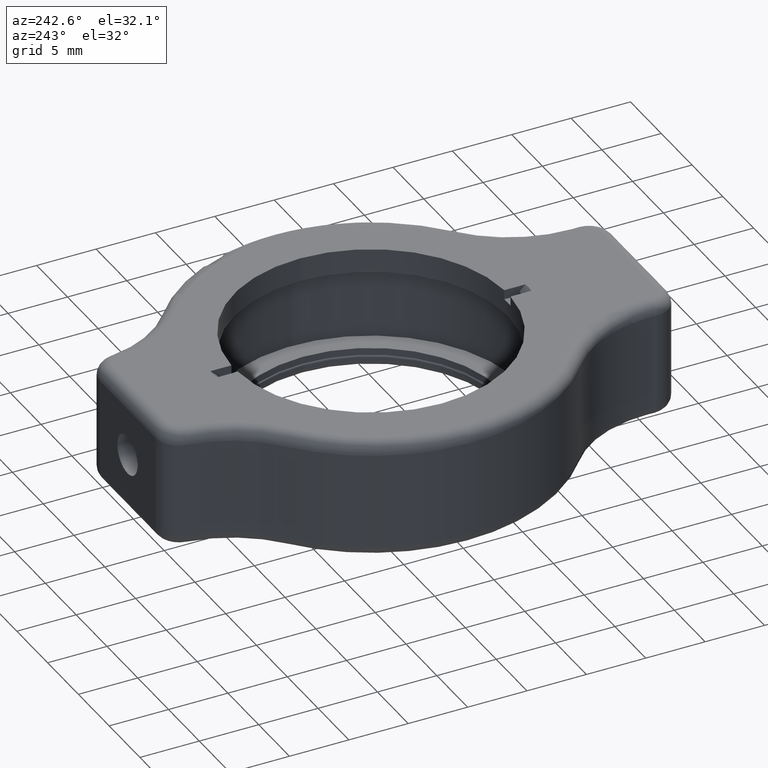
[diagram: clean part render]
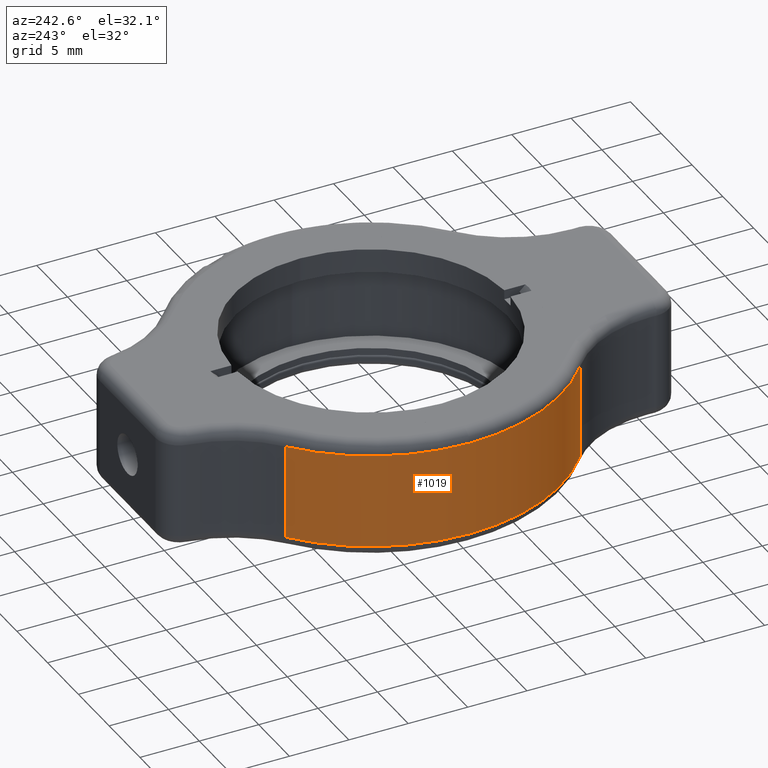
[diagram: same view with one face highlighted and labeled with its STEP entity id]
A machine part, auxiliary view. The second image highlights one B-rep face of the part: STEP entity #1019.
In plain terms, the highlighted cylindrical surface (partial cylindrical patch) has radius 16 mm, axis along (0, -0, 1).
Its self-contained STEP definition (entity closure, byte-faithful):
#57 = EDGE_CURVE ( 'NONE', #2434, #1635, #1631, .T. ) ;
#78 = CARTESIAN_POINT ( 'NONE',  ( -16.00000000000000000, -4.440892098500571400E-016, -8.999999999999982200 ) ) ;
#149 = DIRECTION ( 'NONE',  ( -1.000000000000000000, -2.775557561562889500E-017, 0.0000000000000000000 ) ) ;
#190 = EDGE_CURVE ( 'NONE', #2434, #543, #1063, .T. ) ;
#209 = FACE_OUTER_BOUND ( 'NONE', #823, .T. ) ;
#222 = EDGE_CURVE ( 'NONE', #1746, #1880, #1934, .T. ) ;
#275 = CARTESIAN_POINT ( 'NONE',  ( -10.14624297683040400, -12.37148954067859200, -0.9999999999999965600 ) ) ;
#380 = AXIS2_PLACEMENT_3D ( 'NONE', #1667, #1269, #855 ) ;
#424 = AXIS2_PLACEMENT_3D ( 'NONE', #591, #1993, #149 ) ;
#529 = ORIENTED_EDGE ( 'NONE', *, *, #1060, .T. ) ;
#543 = VERTEX_POINT ( 'NONE', #78 ) ;
#544 = CIRCLE ( 'NONE', #424, 16.00000000000000000 ) ;
#571 = CARTESIAN_POINT ( 'NONE',  ( -16.00000000000000000, -4.440892098500616800E-016, -0.9999999999999963400 ) ) ;
#591 = CARTESIAN_POINT ( 'NONE',  ( -2.177495956332569000E-016, 5.133162807482772200E-030, -8.999999999999982200 ) ) ;
#606 = AXIS2_PLACEMENT_3D ( 'NONE', #1607, #2447, #628 ) ;
#628 = DIRECTION ( 'NONE',  ( -1.000000000000000000, -2.775557561562889500E-017, 2.710505431213761100E-017 ) ) ;
#629 = ORIENTED_EDGE ( 'NONE', *, *, #57, .F. ) ;
#682 = VERTEX_POINT ( 'NONE', #571 ) ;
#795 = CARTESIAN_POINT ( 'NONE',  ( -2.177495956332569000E-016, 5.133162807482772200E-030, -8.999999999999982200 ) ) ;
#810 = EDGE_CURVE ( 'NONE', #682, #1635, #838, .T. ) ;
#823 = EDGE_LOOP ( 'NONE', ( #2017, #1494, #1385, #629, #2048, #529 ) ) ;
#838 = CIRCLE ( 'NONE', #380, 16.00000000000000000 ) ;
#855 = DIRECTION ( 'NONE',  ( -1.000000000000000000, -2.775557561562889500E-017, 2.710505431213761100E-017 ) ) ;
#1019 = ADVANCED_FACE ( 'NONE', ( #209 ), #1437, .T. ) ;
#1060 = EDGE_CURVE ( 'NONE', #543, #1746, #544, .T. ) ;
#1063 = CIRCLE ( 'NONE', #2024, 16.00000000000000000 ) ;
#1095 = VECTOR ( 'NONE', #1917, 1000.000000000000000 ) ;
#1164 = DIRECTION ( 'NONE',  ( 2.419439951480636200E-017, -5.703514230536423600E-031, 1.000000000000000000 ) ) ;
#1181 = CARTESIAN_POINT ( 'NONE',  ( -2.419439951480632400E-016, 5.703514230536414000E-030, -9.999999999999980500 ) ) ;
#1269 = DIRECTION ( 'NONE',  ( -2.419439951480636200E-017, 5.703514230536423600E-031, -1.000000000000000000 ) ) ;
#1385 = ORIENTED_EDGE ( 'NONE', *, *, #810, .T. ) ;
#1413 = CARTESIAN_POINT ( 'NONE',  ( -10.09372004057071900, 12.41437939417759200, -0.9999999999999965600 ) ) ;
#1437 = CYLINDRICAL_SURFACE ( 'NONE', #1776, 16.00000000000000000 ) ;
#1443 = CARTESIAN_POINT ( 'NONE',  ( -10.14624297683040400, -12.37148954067859200, -8.999999999999982200 ) ) ;
#1494 = ORIENTED_EDGE ( 'NONE', *, *, #2330, .T. ) ;
#1552 = DIRECTION ( 'NONE',  ( -1.000000000000000000, 7.965850201685490300E-015, 0.0000000000000000000 ) ) ;
#1604 = CARTESIAN_POINT ( 'NONE',  ( -10.14624297683040400, -12.37148954067859200, -9.999999999999980500 ) ) ;
#1607 = CARTESIAN_POINT ( 'NONE',  ( -2.419439951480629100E-017, 5.703514230536408700E-031, -0.9999999999999967800 ) ) ;
#1615 = DIRECTION ( 'NONE',  ( 2.419439951480636200E-017, -5.703514230536423600E-031, 1.000000000000000000 ) ) ;
#1631 = LINE ( 'NONE', #2542, #1095 ) ;
#1635 = VERTEX_POINT ( 'NONE', #1413 ) ;
#1646 = CIRCLE ( 'NONE', #606, 16.00000000000000000 ) ;
#1658 = VECTOR ( 'NONE', #1615, 1000.000000000000000 ) ;
#1667 = CARTESIAN_POINT ( 'NONE',  ( -2.419439951480629100E-017, 5.703514230536408700E-031, -0.9999999999999967800 ) ) ;
#1746 = VERTEX_POINT ( 'NONE', #1443 ) ;
#1776 = AXIS2_PLACEMENT_3D ( 'NONE', #1181, #2599, #1788 ) ;
#1788 = DIRECTION ( 'NONE',  ( 1.000000000000000000, 2.775557561562889500E-017, 0.0000000000000000000 ) ) ;
#1840 = CARTESIAN_POINT ( 'NONE',  ( -10.09372004057071900, 12.41437939417759200, -8.999999999999982200 ) ) ;
#1880 = VERTEX_POINT ( 'NONE', #275 ) ;
#1917 = DIRECTION ( 'NONE',  ( 2.419439951480636200E-017, -5.703514230536423600E-031, 1.000000000000000000 ) ) ;
#1934 = LINE ( 'NONE', #1604, #1658 ) ;
#1993 = DIRECTION ( 'NONE',  ( 2.419439951480636200E-017, -5.703514230536423600E-031, 1.000000000000000000 ) ) ;
#2017 = ORIENTED_EDGE ( 'NONE', *, *, #222, .T. ) ;
#2024 = AXIS2_PLACEMENT_3D ( 'NONE', #795, #1164, #1552 ) ;
#2048 = ORIENTED_EDGE ( 'NONE', *, *, #190, .T. ) ;
#2330 = EDGE_CURVE ( 'NONE', #1880, #682, #1646, .T. ) ;
#2434 = VERTEX_POINT ( 'NONE', #1840 ) ;
#2447 = DIRECTION ( 'NONE',  ( -2.419439951480636200E-017, 5.703514230536423600E-031, -1.000000000000000000 ) ) ;
#2542 = CARTESIAN_POINT ( 'NONE',  ( -10.09372004057071900, 12.41437939417759200, -9.999999999999980500 ) ) ;
#2599 = DIRECTION ( 'NONE',  ( 2.419439951480636200E-017, -5.703514230536423600E-031, 1.000000000000000000 ) ) ;